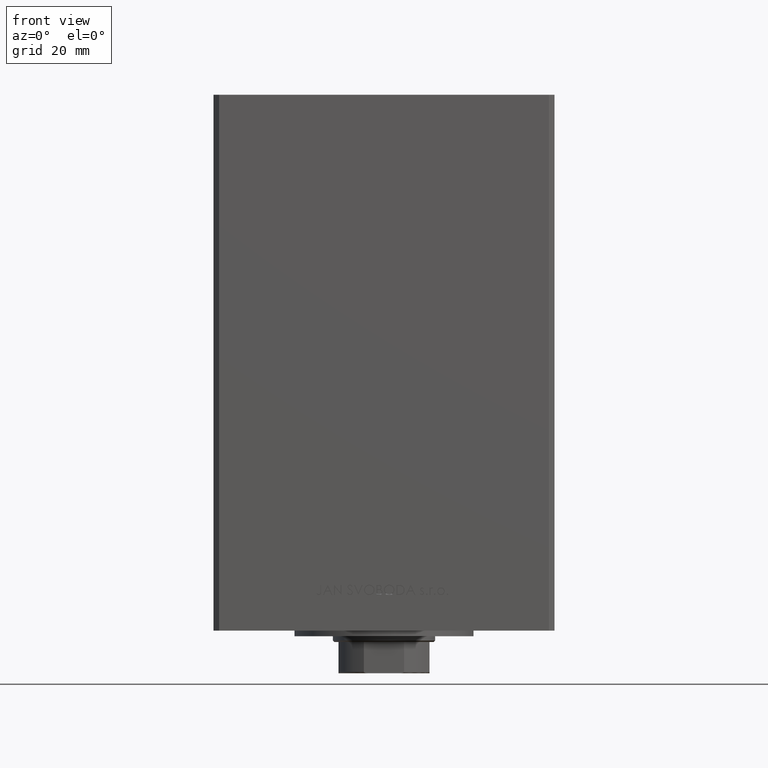
[diagram: clean part render]
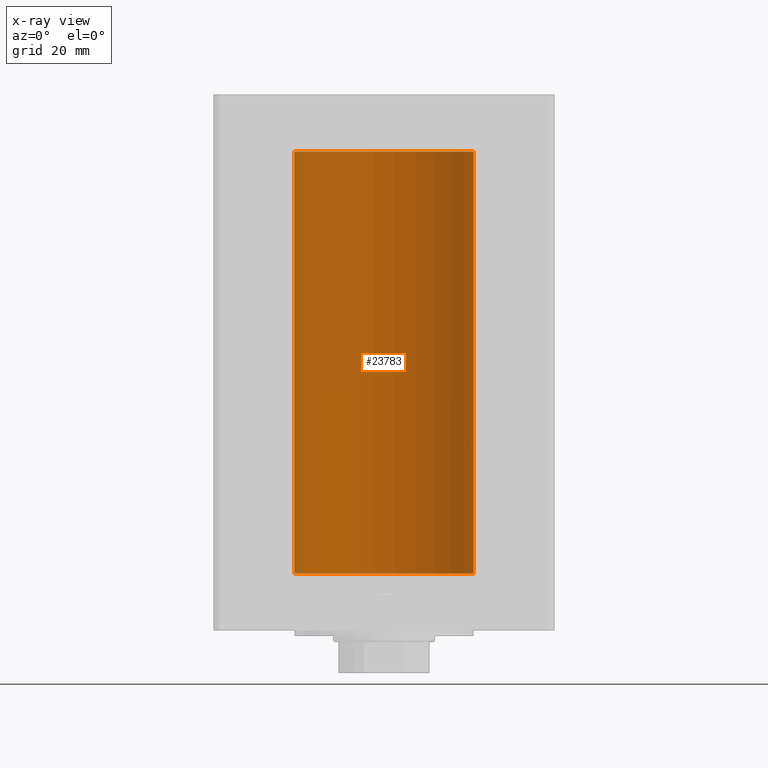
[diagram: x-ray — body ghosted, one internal face saturated and labeled with its STEP entity id]
A machine part, front view, then the same camera in x-ray: the body is ghosted and one INTERNAL B-rep face — a face not visible from any outside direction — is saturated and labeled: STEP entity #23783.
In plain terms, the highlighted cylindrical surface (partial cylindrical patch) has radius 31.5 mm, axis along (-0, -0, -1).
Its self-contained STEP definition (entity closure, byte-faithful):
#2035 = VECTOR ( 'NONE', #31755, 1000.000000000000000 ) ;
#2786 = EDGE_LOOP ( 'NONE', ( #36139, #14887, #43697, #11522 ) ) ;
#3713 = AXIS2_PLACEMENT_3D ( 'NONE', #9081, #4863, #28444 ) ;
#4863 = DIRECTION ( 'NONE',  ( -0.000000000000000000, 0.000000000000000000, 1.000000000000000000 ) ) ;
#8932 = VERTEX_POINT ( 'NONE', #19196 ) ;
#9081 = CARTESIAN_POINT ( 'NONE',  ( 0.000000000000000000, 0.000000000000000000, 0.000000000000000000 ) ) ;
#11522 = ORIENTED_EDGE ( 'NONE', *, *, #47032, .F. ) ;
#13157 = CARTESIAN_POINT ( 'NONE',  ( -31.50000000000000000, 0.000000000000000000, 148.5000000000000000 ) ) ;
#14803 = CIRCLE ( 'NONE', #3713, 31.50000000000000000 ) ;
#14887 = ORIENTED_EDGE ( 'NONE', *, *, #31766, .T. ) ;
#15310 = VECTOR ( 'NONE', #45827, 1000.000000000000000 ) ;
#15966 = CARTESIAN_POINT ( 'NONE',  ( 0.000000000000000000, 0.000000000000000000, 148.5000000000000000 ) ) ;
#18394 = CARTESIAN_POINT ( 'NONE',  ( 0.000000000000000000, 0.000000000000000000, 148.5000000000000000 ) ) ;
#19196 = CARTESIAN_POINT ( 'NONE',  ( 31.50000000000000000, 3.857637417314162689E-15, 148.5000000000000000 ) ) ;
#20710 = CARTESIAN_POINT ( 'NONE',  ( 31.50000000000000000, 3.857637417314162689E-15, 0.000000000000000000 ) ) ;
#22116 = FACE_OUTER_BOUND ( 'NONE', #2786, .T. ) ;
#23173 = CIRCLE ( 'NONE', #45429, 31.50000000000000000 ) ;
#23783 = ADVANCED_FACE ( 'NONE', ( #22116 ), #37275, .F. ) ;
#23930 = LINE ( 'NONE', #42337, #15310 ) ;
#24176 = VERTEX_POINT ( 'NONE', #44235 ) ;
#28444 = DIRECTION ( 'NONE',  ( 1.000000000000000000, 0.000000000000000000, 0.000000000000000000 ) ) ;
#28652 = AXIS2_PLACEMENT_3D ( 'NONE', #18394, #33539, #47729 ) ;
#31755 = DIRECTION ( 'NONE',  ( -0.000000000000000000, -0.000000000000000000, -1.000000000000000000 ) ) ;
#31766 = EDGE_CURVE ( 'NONE', #8932, #42796, #23173, .T. ) ;
#33497 = VERTEX_POINT ( 'NONE', #20710 ) ;
#33539 = DIRECTION ( 'NONE',  ( -0.000000000000000000, -0.000000000000000000, -1.000000000000000000 ) ) ;
#36139 = ORIENTED_EDGE ( 'NONE', *, *, #44285, .F. ) ;
#37275 = CYLINDRICAL_SURFACE ( 'NONE', #28652, 31.50000000000000000 ) ;
#37836 = EDGE_CURVE ( 'NONE', #42796, #24176, #23930, .T. ) ;
#38965 = LINE ( 'NONE', #42947, #2035 ) ;
#42337 = CARTESIAN_POINT ( 'NONE',  ( -31.50000000000000000, 0.000000000000000000, 148.5000000000000000 ) ) ;
#42543 = DIRECTION ( 'NONE',  ( 1.000000000000000000, 0.000000000000000000, 0.000000000000000000 ) ) ;
#42796 = VERTEX_POINT ( 'NONE', #13157 ) ;
#42947 = CARTESIAN_POINT ( 'NONE',  ( 31.50000000000000000, 3.857637417314162689E-15, 148.5000000000000000 ) ) ;
#43697 = ORIENTED_EDGE ( 'NONE', *, *, #37836, .T. ) ;
#44235 = CARTESIAN_POINT ( 'NONE',  ( -31.50000000000000000, 0.000000000000000000, 0.000000000000000000 ) ) ;
#44285 = EDGE_CURVE ( 'NONE', #8932, #33497, #38965, .T. ) ;
#45429 = AXIS2_PLACEMENT_3D ( 'NONE', #15966, #46278, #42543 ) ;
#45827 = DIRECTION ( 'NONE',  ( -0.000000000000000000, -0.000000000000000000, -1.000000000000000000 ) ) ;
#46278 = DIRECTION ( 'NONE',  ( -0.000000000000000000, 0.000000000000000000, 1.000000000000000000 ) ) ;
#47032 = EDGE_CURVE ( 'NONE', #33497, #24176, #14803, .T. ) ;
#47729 = DIRECTION ( 'NONE',  ( -1.000000000000000000, 0.000000000000000000, 0.000000000000000000 ) ) ;